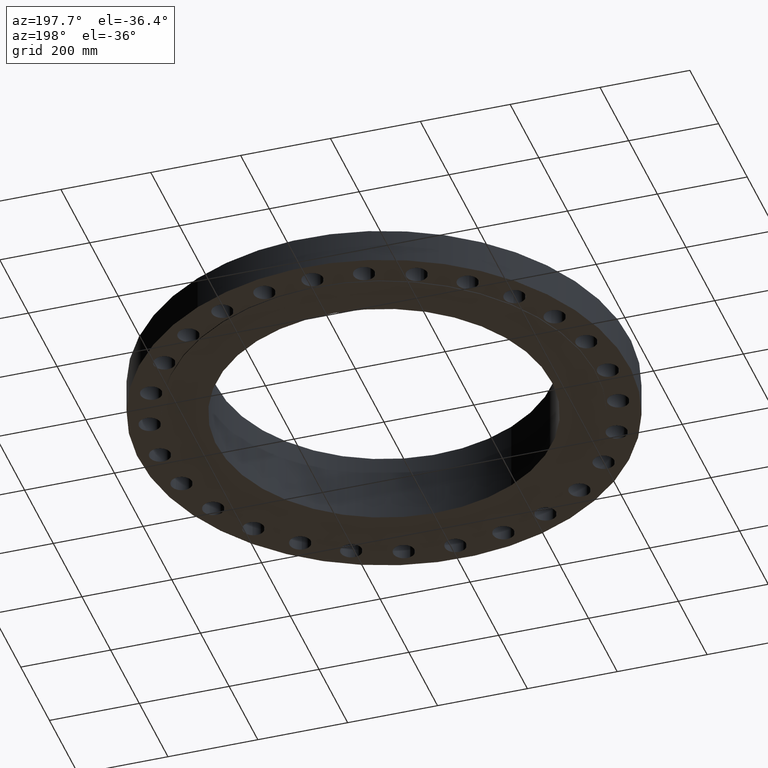
[diagram: clean part render]
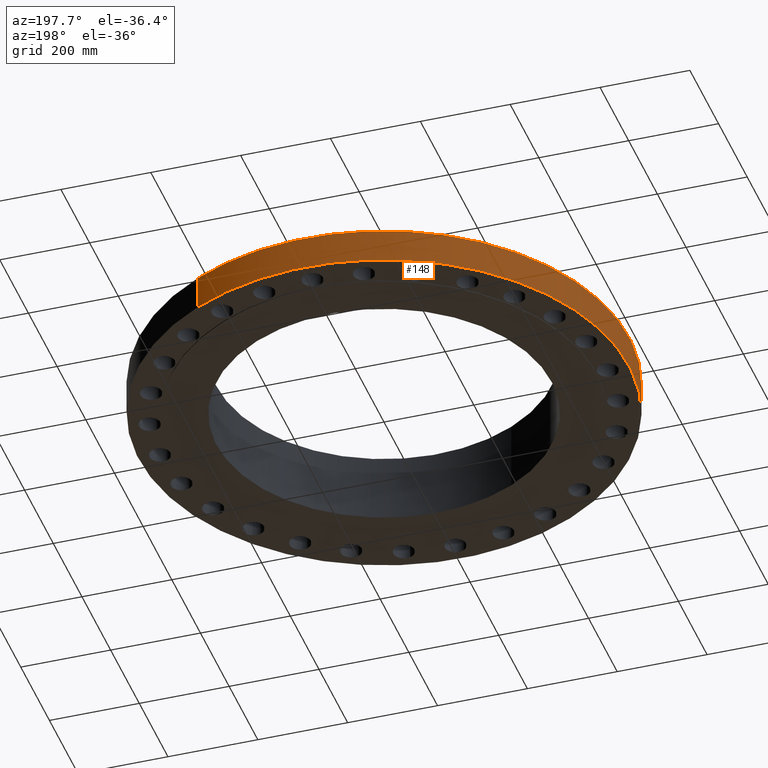
[diagram: same view with one face highlighted and labeled with its STEP entity id]
A machine part, auxiliary view. The second image highlights one B-rep face of the part: STEP entity #148.
In plain terms, the highlighted cylindrical surface (partial cylindrical patch) has radius 546.1 mm, axis along (0, 0, -1).
Its self-contained STEP definition (entity closure, byte-faithful):
#109=CARTESIAN_POINT('Axis2P3D Location',(0.,0.,76.6762500003)) ;
#114=CARTESIAN_POINT('Axis2P3D Location',(0.,0.,5.68434188608E-014)) ;
#118=CARTESIAN_POINT('Vertex',(-261.814286633,-479.24783705,5.68434188608E-014)) ;
#120=CARTESIAN_POINT('Vertex',(261.814286633,479.24783705,5.68434188608E-014)) ;
#123=CARTESIAN_POINT('Line Origine',(-261.814286633,-479.24783705,38.1000000002)) ;
#127=CARTESIAN_POINT('Vertex',(-261.814286633,-479.24783705,76.2000000003)) ;
#130=CARTESIAN_POINT('Axis2P3D Location',(0.,0.,76.2000000003)) ;
#134=CARTESIAN_POINT('Vertex',(261.814286633,479.24783705,76.2000000003)) ;
#137=CARTESIAN_POINT('Line Origine',(261.814286633,479.24783705,38.1000000002)) ;
#110=DIRECTION('Axis2P3D Direction',(0.,0.,-1.)) ;
#111=DIRECTION('Axis2P3D XDirection',(0.479425538604,0.87758256189,0.)) ;
#115=DIRECTION('Axis2P3D Direction',(0.,0.,-1.)) ;
#124=DIRECTION('Vector Direction',(0.,0.,-1.)) ;
#131=DIRECTION('Axis2P3D Direction',(0.,0.,-1.)) ;
#138=DIRECTION('Vector Direction',(0.,0.,-1.)) ;
#112=AXIS2_PLACEMENT_3D('Cylinder Axis2P3D',#109,#110,#111) ;
#116=AXIS2_PLACEMENT_3D('Circle Axis2P3D',#114,#115,$) ;
#132=AXIS2_PLACEMENT_3D('Circle Axis2P3D',#130,#131,$) ;
#143=ORIENTED_EDGE('',*,*,#122,.F.) ;
#144=ORIENTED_EDGE('',*,*,#129,.T.) ;
#145=ORIENTED_EDGE('',*,*,#136,.T.) ;
#146=ORIENTED_EDGE('',*,*,#141,.F.) ;
#125=VECTOR('Line Direction',#124,1.) ;
#139=VECTOR('Line Direction',#138,1.) ;
#148=ADVANCED_FACE('PartBody',(#147),#113,.T.) ;
#117=CIRCLE('generated circle',#116,546.100000002) ;
#133=CIRCLE('generated circle',#132,546.100000002) ;
#113=CYLINDRICAL_SURFACE('generated cylinder',#112,546.100000002) ;
#122=EDGE_CURVE('',#119,#121,#117,.T.) ;
#129=EDGE_CURVE('',#119,#128,#126,.F.) ;
#136=EDGE_CURVE('',#128,#135,#133,.T.) ;
#141=EDGE_CURVE('',#121,#135,#140,.F.) ;
#142=EDGE_LOOP('',(#143,#144,#145,#146)) ;
#147=FACE_OUTER_BOUND('',#142,.T.) ;
#126=LINE('Line',#123,#125) ;
#140=LINE('Line',#137,#139) ;
#119=VERTEX_POINT('',#118) ;
#121=VERTEX_POINT('',#120) ;
#128=VERTEX_POINT('',#127) ;
#135=VERTEX_POINT('',#134) ;